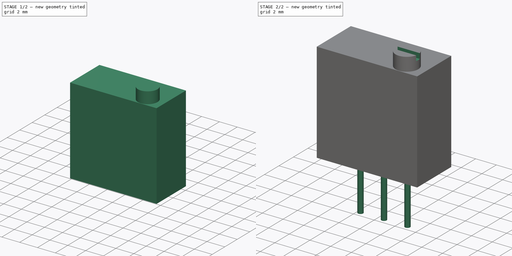
[diagram: build sequence overview — one tinted view per stage of 2, left to right]
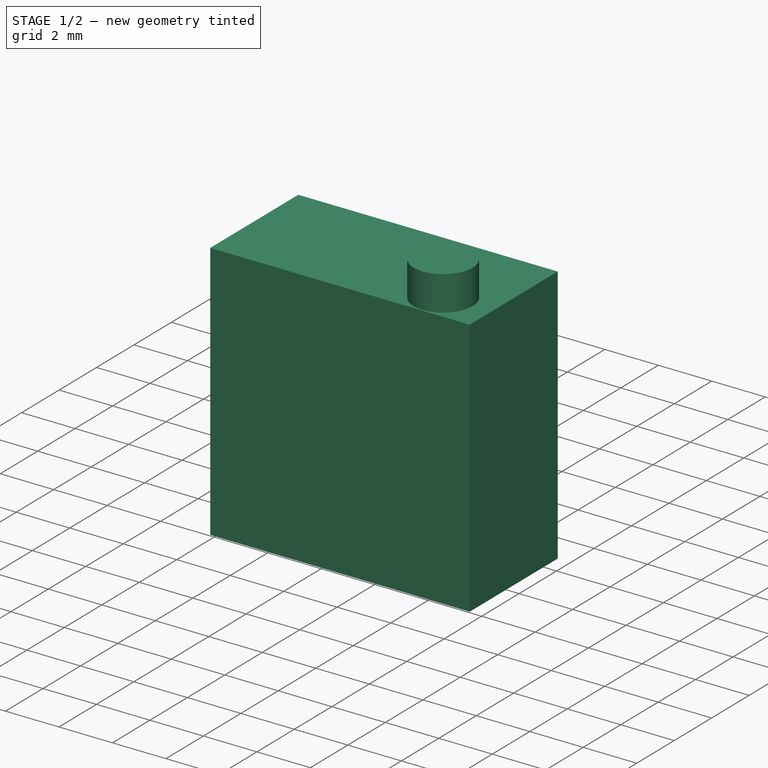
[diagram: stage 1 of 2 — iso view after this stage's code; geometry added in this stage tinted green]
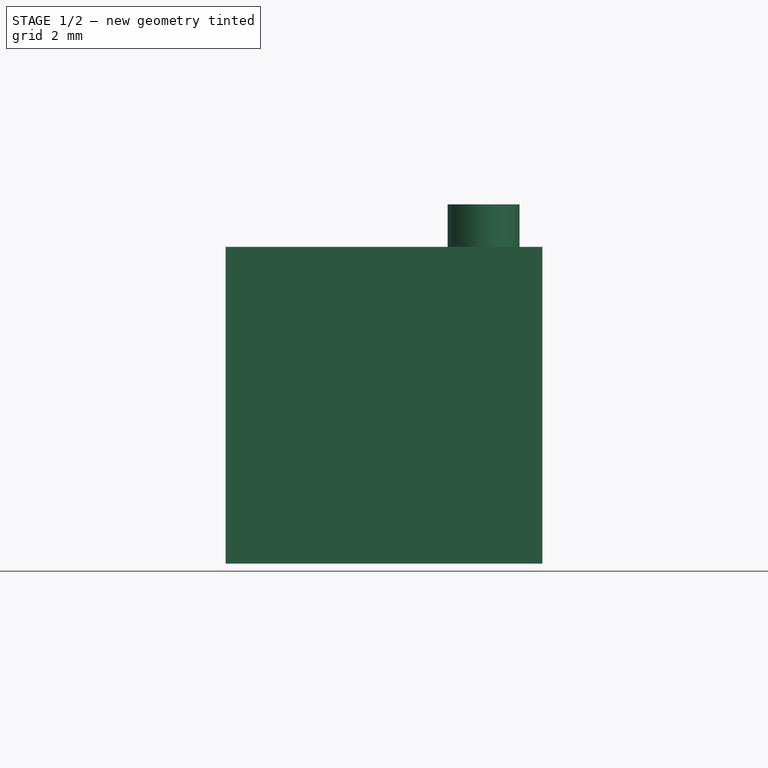
[diagram: stage 1 of 2 — front view after this stage's code; geometry added in this stage tinted green]
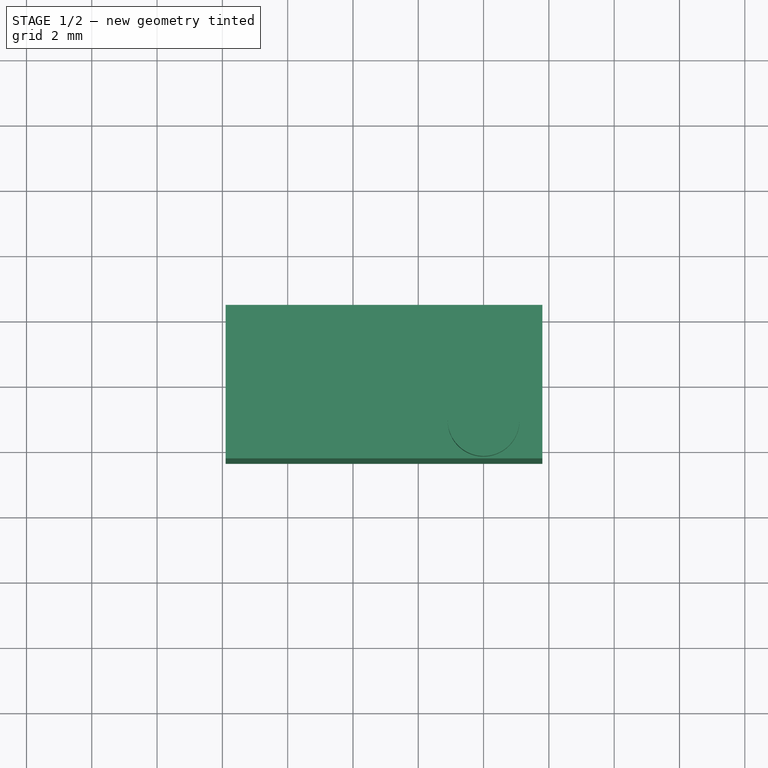
[diagram: stage 1 of 2 — top view after this stage's code; geometry added in this stage tinted green]
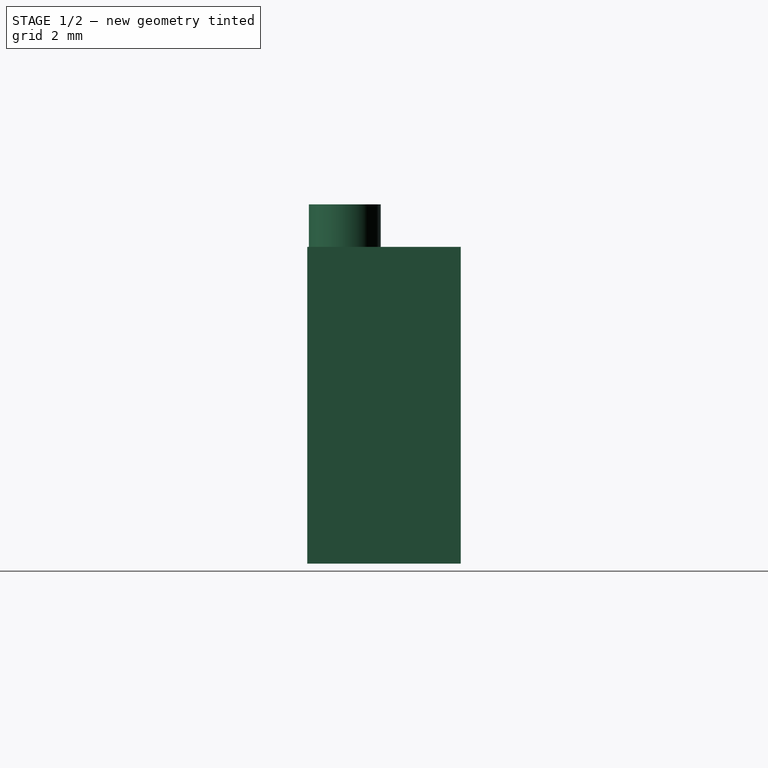
[diagram: stage 1 of 2 — right view after this stage's code; geometry added in this stage tinted green]
FCSTD DOCUMENT  (FreeCAD 0.16R6698 (Git))
Label: rotary-resistor-M64W103KB40
License: All rights reserved
LicenseURL: http://en.wikipedia.org/wiki/All_rights_reserved
objects: Sketcher::SketchObject×4, PartDesign::Pad×3, PartDesign::Pocket×1
note: 12 computed .brp shape members not serialized (recipe doc carries the construction recipe); baked Part::Feature solids carry a one-line shape summary decoded from their .brp

FEATURE [Sketcher::SketchObject] Sketch
  Placement = pos=(0,0,0) rot=(-1,0,0;4.71239rad)
  sketch-geometry (4):
    g0: LineSegment StartX=-7.9 StartY=0 StartZ=0 EndX=1.8 EndY=0 EndZ=0
    g1: LineSegment StartX=1.8 StartY=0 StartZ=0 EndX=1.8 EndY=-9.7 EndZ=0
    g2: LineSegment StartX=1.8 StartY=-9.7 StartZ=0 EndX=-7.9 EndY=-9.7 EndZ=0
    g3: LineSegment StartX=-7.9 StartY=-9.7 StartZ=0 EndX=-7.9 EndY=0 EndZ=0
  constraints (12):
    c: Coincident(g0,g1)
    c: Coincident(g1,g2)
    c: Coincident(g2,g3)
    c: Coincident(g3,g0)
    c: Horizontal(g0)
    c: Horizontal(g2)
    c: Vertical(g1)
    c: Vertical(g3)
    c: DistanceX(g0,g0) = 9.7
    c: DistanceY(g1,g1) = 9.7
    c: Tangent(g0,g-1) = -1.5708
    c: DistanceX(g0) = 1.8
FEATURE [PartDesign::Pad] Pad
  Length = 4.7
  Length2 = 100
  Midplane = true
  Placement = pos=(0,0,0) rot=(-1,0,0;4.71239rad)
  Sketch = -> Sketch
  Type = 0
FEATURE [Sketcher::SketchObject] Sketch001
  Placement = pos=(0,0,0) rot=(0,0,1;3.14159rad)
  Support = -> Pad [Face1]
  sketch-geometry (1):
    g0: Circle CenterX=0 CenterY=1.2 CenterZ=0 NormalX=0 NormalY=0 NormalZ=1 Radius=1.1
  constraints (3):
    c: PointOnObject(g0,g-2)
    c: Radius(g0) = 1.1
    c: DistanceY(g0) = 1.2
FEATURE [PartDesign::Pad] Pad001
  Length = 1.3
  Length2 = 100
  Placement = pos=(0,0,0) rot=(-1,0,0;4.71239rad)
  Sketch = -> Sketch001
  Type = 0
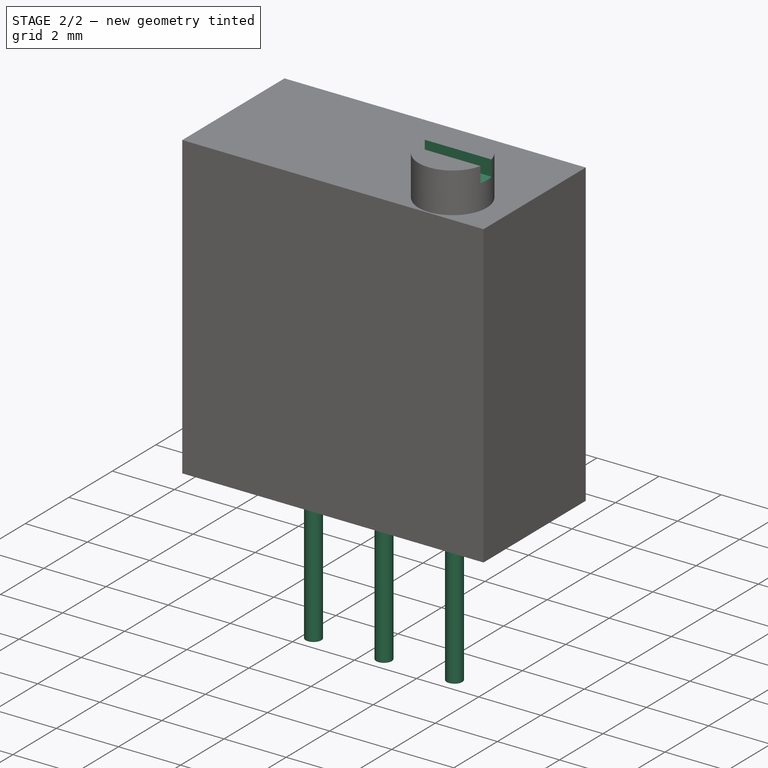
[diagram: stage 2 of 2 — iso view after this stage's code; geometry added in this stage tinted green]
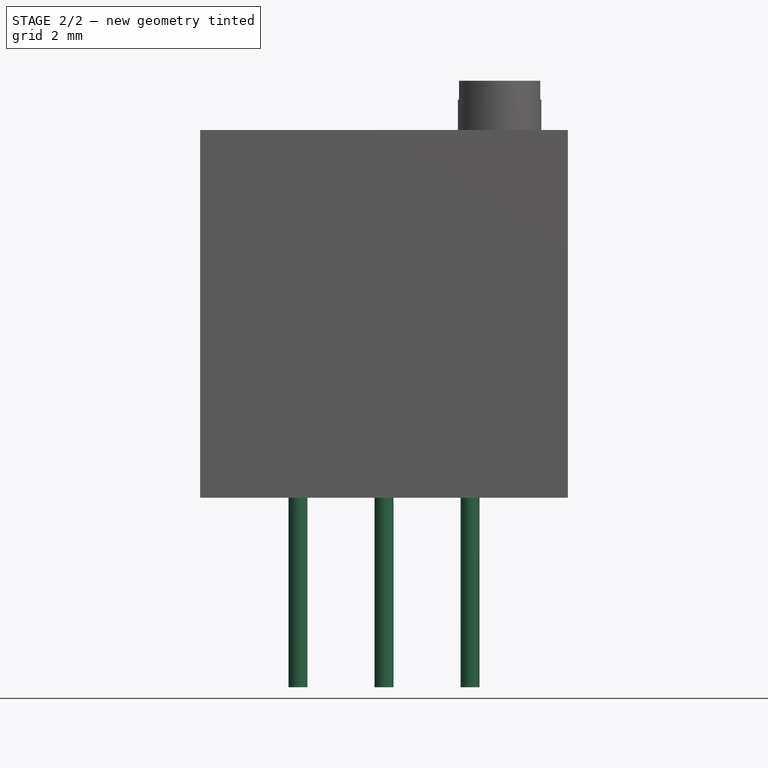
[diagram: stage 2 of 2 — front view after this stage's code; geometry added in this stage tinted green]
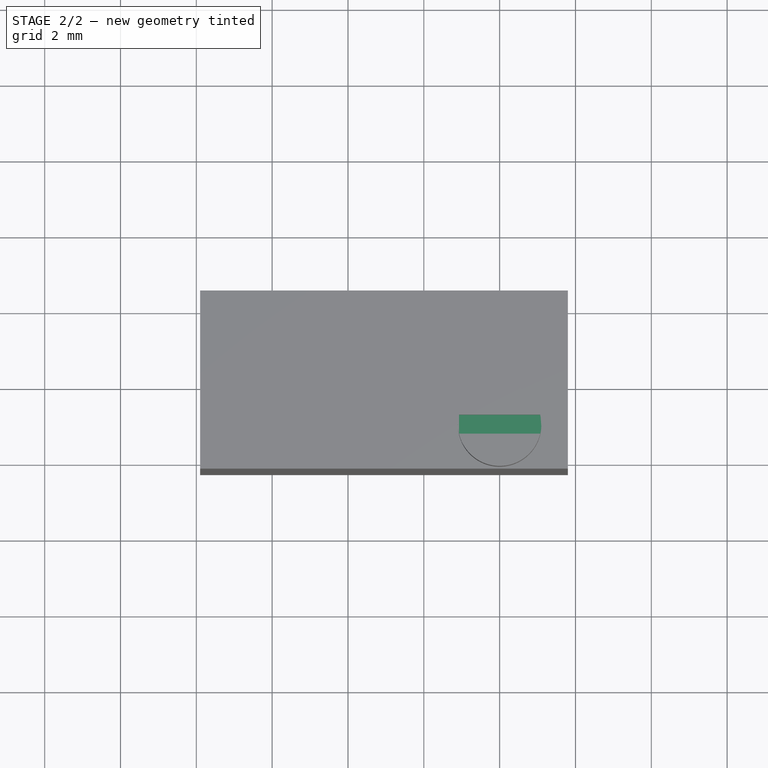
[diagram: stage 2 of 2 — top view after this stage's code; geometry added in this stage tinted green]
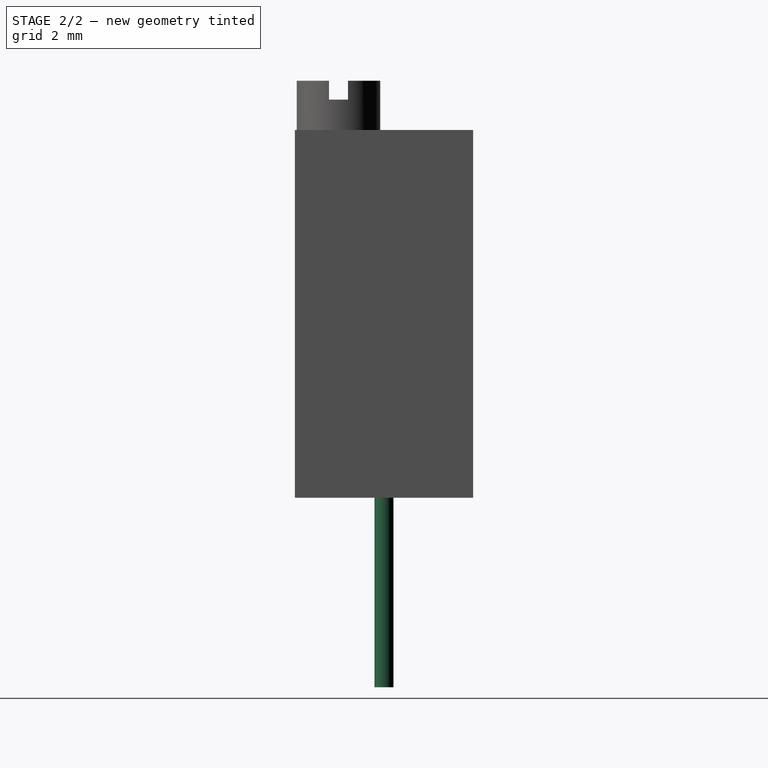
[diagram: stage 2 of 2 — right view after this stage's code; geometry added in this stage tinted green]
FEATURE [Sketcher::SketchObject] Sketch002
  Placement = pos=(0,0,1.3) rot=(0,0,1;3.14159rad)
  Support = -> Pad001 [Face8]
  sketch-geometry (5):
    g0: LineSegment StartX=-1.5 StartY=1.45 StartZ=0 EndX=1.5 EndY=1.45 EndZ=0
    g1: LineSegment StartX=1.5 StartY=1.45 StartZ=0 EndX=1.5 EndY=0.95 EndZ=0
    g2: LineSegment StartX=1.5 StartY=0.95 StartZ=0 EndX=-1.5 EndY=0.95 EndZ=0
    g3: LineSegment StartX=-1.5 StartY=0.95 StartZ=0 EndX=-1.5 EndY=1.45 EndZ=0
    g4: GeomPoint [constr] X=0 Y=1.2 Z=0
  constraints (14):
    c: Coincident(g0,g1)
    c: Coincident(g1,g2)
    c: Coincident(g2,g3)
    c: Coincident(g3,g0)
    c: Horizontal(g0)
    c: Horizontal(g2)
    c: Vertical(g1)
    c: Vertical(g3)
    c: DistanceX(g0,g0) = 3
    c: DistanceY(g1,g1) = 0.5
    c: PointOnObject(g4,g-2)
    c: DistanceY(g4) = 1.2
    c: DistanceY(g4,g0) = 0.25
    c: DistanceX(g4,g0) = 1.5
FEATURE [PartDesign::Pocket] Pocket
  Length = 0.5
  Placement = pos=(0,0,0) rot=(-1,0,0;4.71239rad)
  Sketch = -> Sketch002
  Type = 0
FEATURE [Sketcher::SketchObject] Sketch003
  Placement = pos=(0,0,-9.7) rot=(1,0,0;3.14159rad)
  Support = -> Pocket [Face2]
  sketch-geometry (3):
    g0: Circle CenterX=-5.32 CenterY=0 CenterZ=0 NormalX=0 NormalY=0 NormalZ=1 Radius=0.25
    g1: Circle CenterX=-3.05 CenterY=0 CenterZ=0 NormalX=0 NormalY=0 NormalZ=1 Radius=0.25
    g2: Circle CenterX=-0.78 CenterY=0 CenterZ=0 NormalX=0 NormalY=0 NormalZ=1 Radius=0.25
  constraints (9):
    c: PointOnObject(g0,g-1)
    c: PointOnObject(g1,g-1)
    c: Radius(g0) = 0.25
    c: Equal(g0,g1)
    c: Equal(g0,g2)
    c: DistanceX(g0,g1) = 2.27
    c: DistanceX(g1,g2) = 2.27
    c: PointOnObject(g2,g-1)
    c: DistanceX(g1,g-1) = 3.05
FEATURE [PartDesign::Pad] Pad002
  Length = 5
  Length2 = 100
  Placement = pos=(0,0,0) rot=(-1,0,0;4.71239rad)
  Sketch = -> Sketch003
  Type = 0
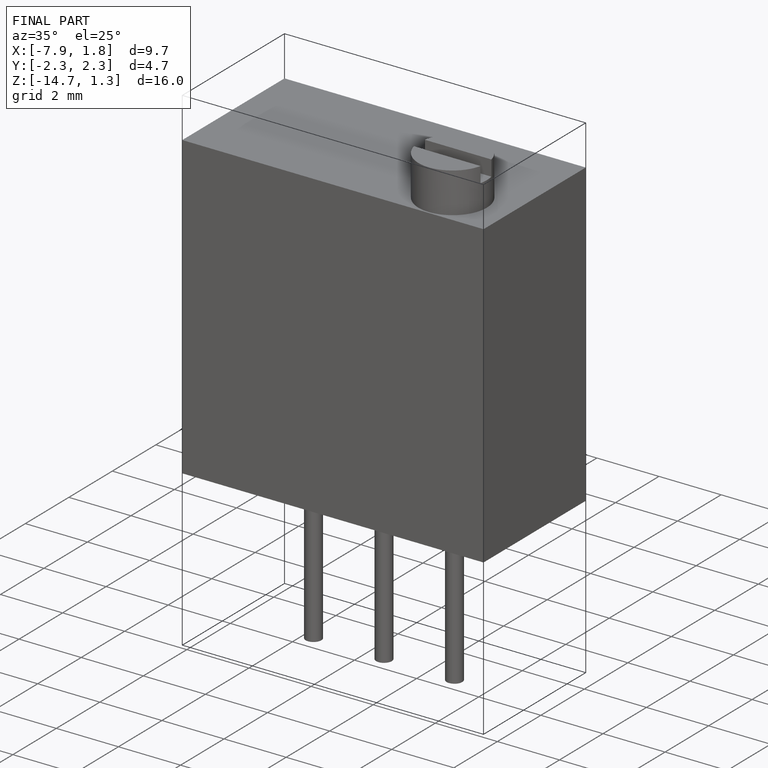
[diagram: finished part — iso view with bounding-box wireframe]
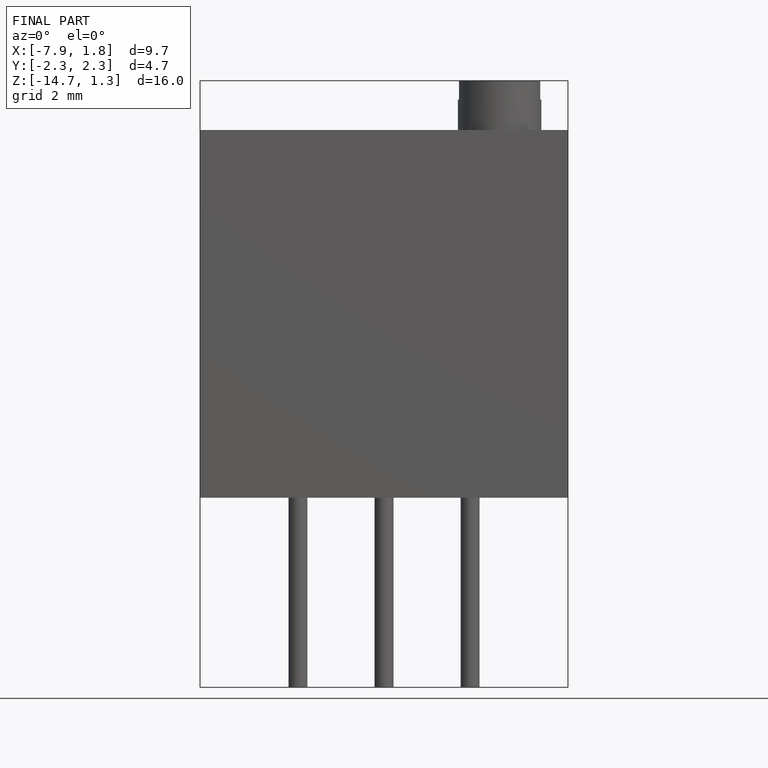
[diagram: finished part — front view with bounding-box wireframe]
